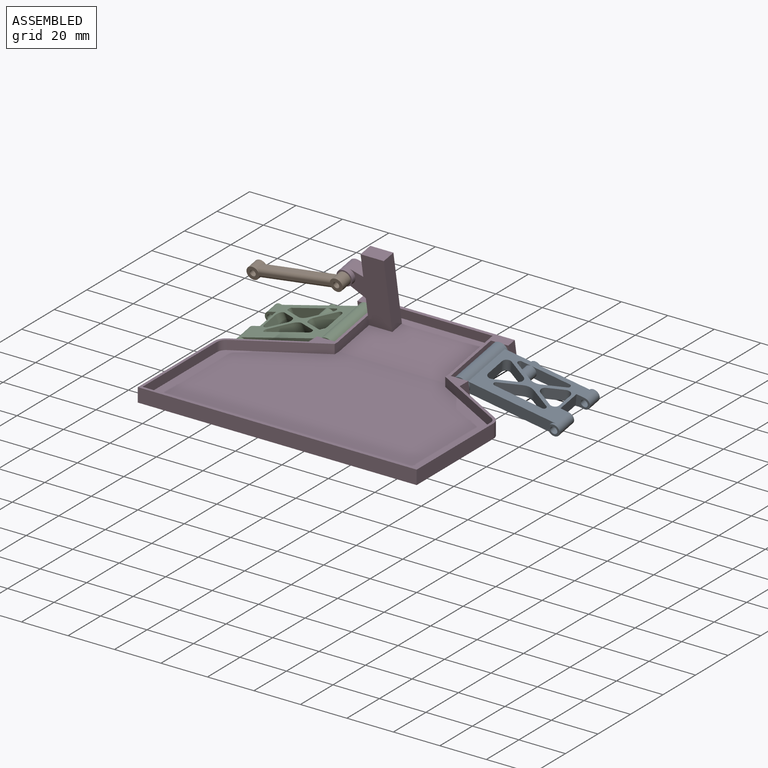
[diagram: assembled view]
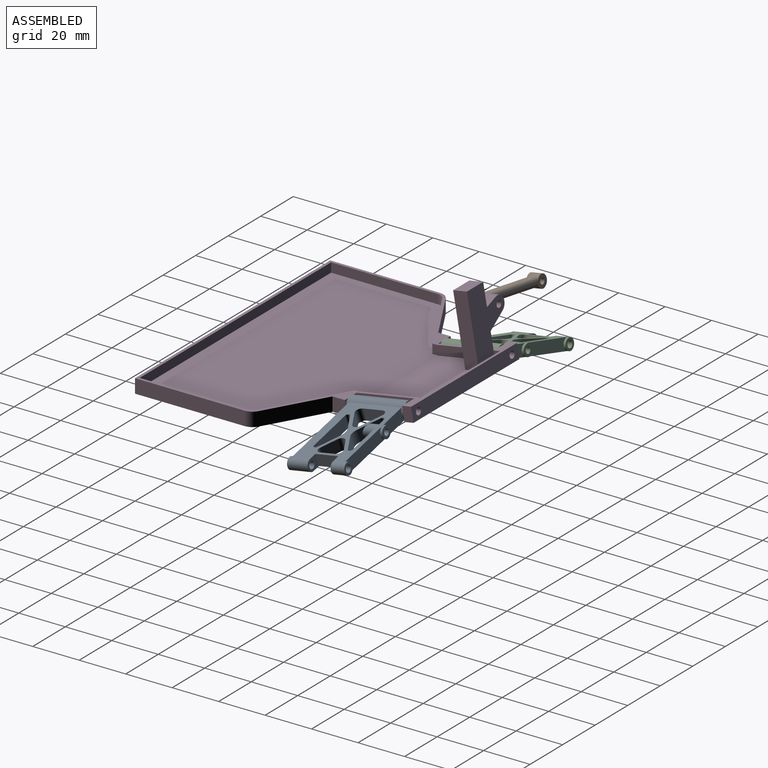
[diagram: assembled view, second angle]
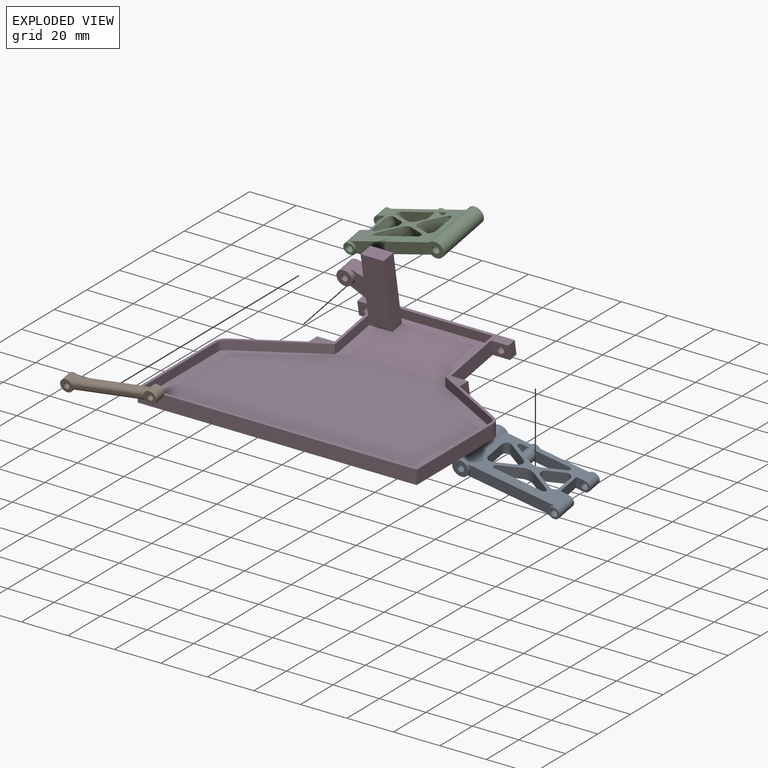
[diagram: exploded view]
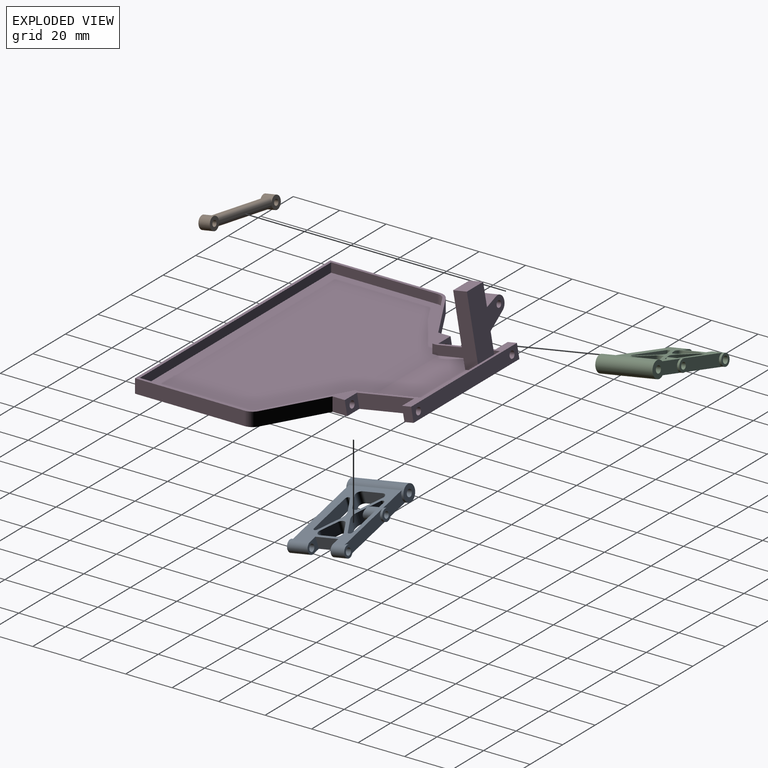
[diagram: exploded view, second angle]
ASSEMBLY  parts=4 mates=6
PART A: 49 faces, bbox 46x25x7 mm
  f0: cylinder r=1.38mm len=8.05mm, axis (0,1,0), area 63mm2, adj f1,f16
  f1: plane 2.75x2.75mm, normal (0.47,0.88,0), area 6.7mm2, adj f0
  f2: plane 5x3.85mm, normal (0.47,0.88,0), area 10.7mm2, adj f4,f5,f34,f48
  f3: plane 16.45x5mm, normal (0,-1,0), area 72.5mm2, adj f4,f5,f43,f48
  f4: plane 37.55x23mm, normal (0,0,-1), area 448.9mm2, adj f2,f3,f8,f9,f13,f17,f18,f19
  f5: plane 37.55x23mm, normal (0,0,1), area 448.9mm2, adj f2,f3,f8,f9,f13,f17,f18,f19
  f6: plane 5x5mm, normal (0,1,0), area 12.6mm2, adj f8,f10
  f7: plane 7x7mm, normal (0,1,0), area 31.4mm2, adj f13,f14
  f8: cylinder r=2.5mm len=6mm, axis (0,-1,0), area 55mm2, adj f4,f5,f6,f18,f47
  f9: cylinder r=2.5mm len=9mm, axis (0,-1,0), area 78.5mm2, adj f4,f5,f12,f17,f19
  f10: cylinder r=1.5mm len=6mm, axis (0,-1,0), area 56.5mm2, adj f6,f18
  f11: plane 7x7mm, normal (0,-1,0), area 31.4mm2, adj f13,f14
  f12: plane 5x5mm, normal (0,-1,0), area 12.6mm2, adj f9,f15
  f13: cylinder r=3.5mm len=25mm, axis (0,-1,0), area 421.7mm2, adj f4,f5,f7,f11,f17,f46
  f14: cylinder r=1.5mm len=25mm, axis (0,-1,0), area 235.6mm2, adj f7,f11
  f15: cylinder r=1.5mm len=9mm, axis (0,-1,0), area 84.8mm2, adj f12,f19
  f16: plane 5x5mm, normal (0,1,0), area 13.7mm2, adj f0,f45
  f17: plane 37.55x5mm, normal (0,-1,0), area 174.3mm2, adj f4,f5,f9,f13
  f18: plane 6x5mm, normal (0,-1,0), area 20.2mm2, adj f4,f5,f8,f10,f20
  f19: plane 6x5mm, normal (0,1,0), area 20.2mm2, adj f4,f5,f9,f15,f20
  f20: plane 10x5mm, normal (1,0,0), area 50mm2, adj f4,f5,f18,f19
  f21: plane 7.98x5mm, normal (-0.47,-0.88,0), area 45.3mm2, adj f4,f5,f38,f40
  f22: plane 8.6x5mm, normal (1,0,0), area 43mm2, adj f4,f5,f39,f40
  f23: plane 7.98x5mm, normal (-0.47,0.88,0), area 45.3mm2, adj f4,f5,f38,f39
  f24: plane 6.23x5mm, normal (0.47,-0.88,0), area 35.4mm2, adj f4,f5,f35,f37
  f25: plane 6.23x5mm, normal (0.47,0.88,0), area 35.4mm2, adj f4,f5,f36,f37
  f26: plane 6.71x5mm, normal (-1,0,0), area 33.6mm2, adj f4,f5,f35,f36
  f27: plane 8.33x5mm, normal (0.47,-0.88,0), area 47.3mm2, adj f4,f5,f33,f42
  f28: plane 20.46x5mm, normal (0,1,0), area 102.3mm2, adj f4,f5,f41,f42
  f29: plane 8.33x5mm, normal (-0.47,-0.88,0), area 47.3mm2, adj f4,f5,f33,f41
  f30: plane 8.33x5mm, normal (-0.47,0.88,0), area 47.3mm2, adj f4,f5,f34,f43
  f31: plane 5x4.01mm, normal (0,-1,0), area 10.2mm2, adj f4,f5,f44,f48
  f32: plane 5x4.48mm, normal (0.47,0.88,0), area 14.3mm2, adj f4,f5,f44,f48
  f33: cylinder r=5mm len=5mm, axis (0,0,1), area 24.7mm2, adj f4,f5,f27,f29
  f34: cylinder r=5mm len=5mm, axis (0,0,1), area 24.7mm2, adj f2,f4,f5,f30
  f35: cylinder r=2mm len=5mm, axis (0,0,-1), area 20.7mm2, adj f4,f5,f24,f26
  f36: cylinder r=2mm len=5mm, axis (0,0,1), area 20.7mm2, adj f4,f5,f25,f26
  f37: cylinder r=2mm len=5mm, axis (0,0,1), area 21.5mm2, adj f4,f5,f24,f25
  f38: cylinder r=2mm len=5mm, axis (0,0,1), area 21.5mm2, adj f4,f5,f21,f23
  f39: cylinder r=2mm len=5mm, axis (0,0,1), area 20.7mm2, adj f4,f5,f22,f23
  f40: cylinder r=2mm len=5mm, axis (0,0,-1), area 20.7mm2, adj f4,f5,f21,f22
  f41: cylinder r=1mm len=5mm, axis (0,0,-1), area 13.2mm2, adj f4,f5,f28,f29
  f42: cylinder r=1mm len=5mm, axis (0,0,1), area 13.2mm2, adj f4,f5,f27,f28
  f43: cylinder r=1mm len=5mm, axis (0,0,1), area 13.2mm2, adj f3,f4,f5,f30
  f44: cylinder r=1mm len=5mm, axis (0,0,-1), area 13.2mm2, adj f4,f5,f31,f32
  f45: cylinder r=2.5mm len=5mm, axis (0,1,0), area 15.7mm2, adj f16,f46,f47
  f46: plane 12.55x5mm, normal (0,1,0), area 49.3mm2, adj f4,f5,f13,f45
  f47: plane 25x5mm, normal (0,1,0), area 105.4mm2, adj f4,f5,f8,f45
  f48: cylinder r=2.5mm len=5.65mm, axis (0,1,0), area 67.5mm2, adj f2,f3,f31,f32
PART B: 12 faces, bbox 42.5x5.5x5 mm
  f0: cylinder r=2.75mm len=5.5mm, axis (0,0,-1), area 68.1mm2, adj f1,f4,f6,f7,f8,f9,f10,f11
  f1: plane 32.98x2mm, normal (0,-1,0), area 66mm2, adj f0,f2,f9,f11
  f2: cylinder r=2.75mm len=5.5mm, axis (0,0,-1), area 68.1mm2, adj f1,f4,f6,f7,f8,f9,f10,f11
  f3: cylinder r=1.25mm len=5mm, axis (0,0,-1), area 39.3mm2, adj f6,f7
  f4: plane 32.98x2mm, normal (0,1,0), area 66mm2, adj f0,f2,f8,f10
  f5: cylinder r=1.25mm len=5mm, axis (0,0,-1), area 39.3mm2, adj f6,f7
  f6: plane 42.5x5.5mm, normal (0,0,1), area 61.3mm2, adj f0,f2,f3,f5,f10,f11
  f7: plane 42.5x5.5mm, normal (0,0,-1), area 61.3mm2, adj f0,f2,f3,f5,f8,f9
  f8: cylinder r=1.5mm len=32.98mm, axis (-1,0,0), area 76.1mm2, adj f0,f2,f4,f7
  f9: cylinder r=1.5mm len=32.98mm, axis (1,0,0), area 76.1mm2, adj f0,f1,f2,f7
  f10: cylinder r=1.5mm len=32.98mm, axis (1,0,0), area 76.1mm2, adj f0,f2,f4,f6
  f11: cylinder r=1.5mm len=32.98mm, axis (-1,0,0), area 76.1mm2, adj f0,f1,f2,f6
PART C: same geometry as A
PART D: 52 faces, bbox 120x100.6x35.9 mm
  f0: plane 8.26x7.18mm, normal (-1,0,0), area 44mm2, adj f27,f43,f44,f49
  f1: plane 4.51x3.42mm, normal (1,0,0), area 11.3mm2, adj f3,f27,f31,f43
  f2: plane 65x6mm, normal (0,0.98,0.17), area 381.9mm2, adj f27,f28,f30,f35,f36,f39
  f3: plane 47.6x27.16mm, normal (0,-0.17,0.98), area 1252.6mm2, adj f1,f9,f10,f11,f31,f43,f44,f45
  f4: plane 24.98x14.27mm, normal (0.5,0.87,0), area 172.6mm2, adj f6,f8,f17,f33
  f5: plane 25.68x10.34mm, normal (1,0,0), area 152.3mm2, adj f27,f28,f32,f34
  f6: plane 120x71mm, normal (0,0,1), area 406.3mm2, adj f4,f9,f10,f12,f13,f14,f15,f16
  f7: plane 25.68x10.34mm, normal (-1,0,0), area 152.3mm2, adj f25,f27,f28,f29
  f8: plane 120x72.06mm, normal (0,0,-1), area 7863.2mm2, adj f4,f12,f13,f14,f15,f16,f17,f25
  f9: plane 21.12x7.3mm, normal (1,0,0), area 86mm2, adj f3,f6,f11,f18,f27,f44
  f10: plane 29.74x8.82mm, normal (-1,0,0), area 121.8mm2, adj f3,f6,f11,f19,f27,f31
  f11: plane 117.6x70.68mm, normal (0,0,1), area 7430.2mm2, adj f3,f9,f10,f18,f19,f20,f21,f22
  f12: plane 24.98x14.27mm, normal (-0.5,0.87,0), area 172.6mm2, adj f6,f8,f13,f26
  f13: cylinder r=5mm len=6mm, axis (0,0,-1), area 31.5mm2, adj f6,f8,f12,f14
  f14: plane 47.1x6mm, normal (-1,0,0), area 282.6mm2, adj f6,f8,f13,f15
  f15: plane 120x6mm, normal (0,-1,0), area 720mm2, adj f6,f8,f14,f16
  f16: plane 47.1x6mm, normal (1,0,0), area 282.6mm2, adj f6,f8,f15,f17
  f17: cylinder r=5mm len=6mm, axis (0,0,-1), area 31.5mm2, adj f4,f6,f8,f16
  f18: plane 33.09x18.91mm, normal (0.5,-0.87,0), area 152.4mm2, adj f6,f9,f11,f24
  f19: plane 33.09x18.91mm, normal (-0.5,-0.87,0), area 152.4mm2, adj f6,f10,f11,f20
  f20: cylinder r=3.8mm len=4mm, axis (0,0,-1), area 16mm2, adj f6,f11,f19,f21
  f21: plane 45.9x4mm, normal (-1,0,0), area 183.6mm2, adj f6,f11,f20,f22
  f22: plane 117.6x4mm, normal (0,1,0), area 470.4mm2, adj f6,f11,f21,f23
  f23: plane 45.9x4mm, normal (1,0,0), area 183.6mm2, adj f6,f11,f22,f24
  f24: cylinder r=3.8mm len=4mm, axis (0,0,-1), area 16mm2, adj f6,f11,f18,f23
  f25: plane 7.5x6mm, normal (0,0.98,0.17), area 38.6mm2, adj f6,f7,f8,f26,f40
  f26: plane 6.34x6mm, normal (-1,0,0), area 34.9mm2, adj f6,f8,f12,f25
  f27: plane 65x28.56mm, normal (0,-0.17,0.98), area 189.1mm2, adj f0,f1,f2,f5,f6,f7,f9,f10
  f28: plane 65x28.56mm, normal (0,0.17,-0.98), area 1510mm2, adj f2,f5,f7,f8,f29,f30,f34,f35
  f29: plane 7.5x6mm, normal (0,-0.98,-0.17), area 38.6mm2, adj f7,f27,f28,f30,f39
  f30: plane 6.69x5mm, normal (-1,0,0), area 24.4mm2, adj f2,f27,f28,f29
  f31: plane 47.6x4.03mm, normal (0,-0.98,-0.17), area 194.8mm2, adj f1,f3,f10,f27
  f32: plane 7.5x6mm, normal (0,0.98,0.17), area 38.6mm2, adj f5,f6,f8,f33,f38
  f33: plane 6.34x6mm, normal (1,0,0), area 34.9mm2, adj f4,f6,f8,f32
  f34: plane 7.5x6mm, normal (0,-0.98,-0.17), area 38.6mm2, adj f5,f27,f28,f35,f36
  f35: plane 6.69x5mm, normal (1,0,0), area 24.4mm2, adj f2,f27,f28,f34
  f36: cylinder r=1.5mm len=4.46mm, axis (0,-0.98,-0.17), area 37.7mm2, adj f2,f34
  f37: plane 3x2.95mm, normal (0,0.98,0.17), area 7.1mm2, adj f38
  f38: cylinder r=1.5mm len=4.46mm, axis (0,-0.98,-0.17), area 37.7mm2, adj f32,f37
  f39: cylinder r=1.5mm len=4.46mm, axis (0,-0.98,-0.17), area 37.7mm2, adj f2,f29
  f40: cylinder r=1.5mm len=4.46mm, axis (0,-0.98,-0.17), area 37.7mm2, adj f25,f41
  f41: plane 3x2.95mm, normal (0,0.98,0.17), area 7.1mm2, adj f40
  f42: plane 10.48x7.57mm, normal (-1,0,0), area 57.5mm2, adj f43,f44,f46,f47
  f43: plane 29.54x20.33mm, normal (0,0.98,0.17), area 369.1mm2, adj f0,f1,f3,f42,f45,f46,f47,f48
  f44: plane 29.54x18.56mm, normal (0,-0.98,-0.17), area 339.2mm2, adj f0,f3,f9,f42,f45,f46,f47,f48
  f45: plane 30.59x11.12mm, normal (1,0,0), area 180mm2, adj f3,f43,f44,f46
  f46: plane 10x5.91mm, normal (0,-0.17,0.98), area 60mm2, adj f42,f43,f44,f45
  f47: plane 6.23x5.95mm, normal (0.3,-0.17,0.94), area 37.4mm2, adj f42,f43,f44,f48
  f48: cylinder r=3.38mm len=9.05mm, axis (0,0.98,0.17), area 102mm2, adj f43,f44,f47,f49,f51
  f49: plane 8.56x6.72mm, normal (-0.48,0.15,-0.86), area 58.5mm2, adj f0,f43,f44,f48
  f50: cylinder r=1.38mm len=8.36mm, axis (0,0.98,0.17), area 69.1mm2, adj f43,f51
  f51: plane 6.75x6.65mm, normal (0,-0.98,-0.17), area 29.8mm2, adj f48,f50
PLACE A rot(axis=(0.68,0.73,0.06),14.7deg) t=(88.75,71.53,3)mm
PLACE B rot(axis=(-0.99,-0.08,-0.09),80.4deg) t=(-7.32,83.65,17.74)mm
PLACE C rot(axis=(0.01,1,0.09),164.6deg) t=(31.25,71.53,3)mm
PLACE D t=(60,0,0)mm
MATE cylindrical C.f14 <-> D.f39  axis (0,-0.98,-0.17) through (31.25,83.84,5.17)mm
MATE cylindrical B.f5 <-> D.f48  axis (0,-0.98,-0.17) through (29.25,82.68,23.24)mm
MATE planar B.f2 <-> D.f48  axis (0,0.98,0.17) through (29.25,85.15,23.68)mm
MATE planar A.f13 <-> D.f32  axis (0,-0.98,-0.17) through (88.75,71.53,3)mm
MATE cylindrical A.f14 <-> D.f36  axis (0,-0.98,-0.17) through (88.75,83.84,5.17)mm
MATE planar C.f13 <-> D.f39  axis (0,-0.98,-0.17) through (31.25,71.53,3)mm
